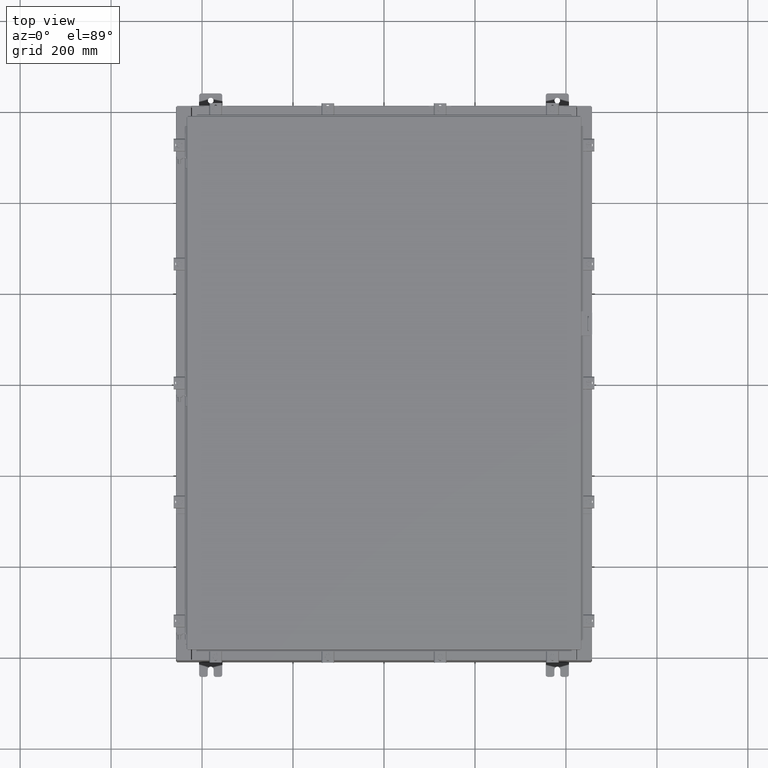
[diagram: clean part render]
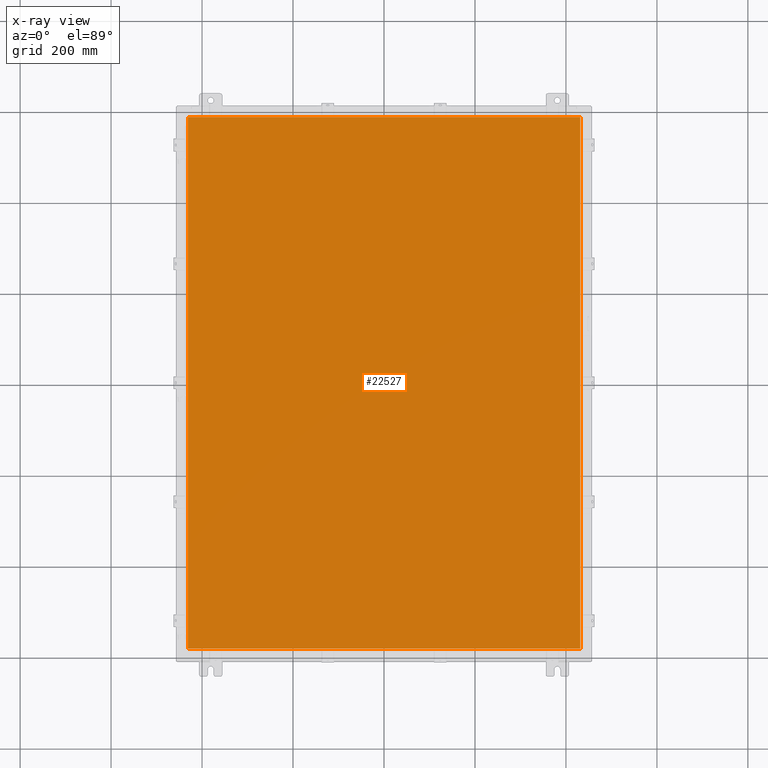
[diagram: x-ray — body ghosted, one internal face saturated and labeled with its STEP entity id]
A machine part, top view, then the same camera in x-ray: the body is ghosted and one INTERNAL B-rep face — a face not visible from any outside direction — is saturated and labeled: STEP entity #22527.
In plain terms, the highlighted planar face has unit normal (0, 0, -1).
Its self-contained STEP definition (entity closure, byte-faithful):
#345 = EDGE_CURVE ( 'NONE', #3444, #26256, #22061, .T. ) ;
#2572 = VECTOR ( 'NONE', #26600, 39.37007874015748100 ) ;
#3444 = VERTEX_POINT ( 'NONE', #26076 ) ;
#3899 = ORIENTED_EDGE ( 'NONE', *, *, #345, .F. ) ;
#4310 = VERTEX_POINT ( 'NONE', #20386 ) ;
#5598 = PLANE ( 'NONE',  #21323 ) ;
#5701 = ORIENTED_EDGE ( 'NONE', *, *, #10773, .F. ) ;
#5838 = EDGE_CURVE ( 'NONE', #10124, #3444, #8872, .T. ) ;
#7142 = EDGE_CURVE ( 'NONE', #26256, #4310, #12126, .T. ) ;
#8373 = ORIENTED_EDGE ( 'NONE', *, *, #7142, .F. ) ;
#8459 = EDGE_LOOP ( 'NONE', ( #3899, #8853, #5701, #8373 ) ) ;
#8853 = ORIENTED_EDGE ( 'NONE', *, *, #5838, .F. ) ;
#8872 = LINE ( 'NONE', #14610, #18157 ) ;
#9936 = DIRECTION ( 'NONE',  ( -1.000000000000000000, 0.0000000000000000000, -0.0000000000000000000 ) ) ;
#9995 = CARTESIAN_POINT ( 'NONE',  ( 16.99030000000000100, 23.00629999999999600, -0.07470000000000000300 ) ) ;
#10124 = VERTEX_POINT ( 'NONE', #16091 ) ;
#10773 = EDGE_CURVE ( 'NONE', #4310, #10124, #26621, .T. ) ;
#12092 = DIRECTION ( 'NONE',  ( 0.0000000000000000000, 1.000000000000000000, 0.0000000000000000000 ) ) ;
#12126 = LINE ( 'NONE', #14915, #22768 ) ;
#14488 = CARTESIAN_POINT ( 'NONE',  ( 16.99030000000000100, -23.00629999999999600, -0.07470000000000129300 ) ) ;
#14610 = CARTESIAN_POINT ( 'NONE',  ( -16.99029999999999800, -23.00630000000000000, -0.07469999999999797600 ) ) ;
#14896 = DIRECTION ( 'NONE',  ( 1.000000000000000000, -0.0000000000000000000, -0.0000000000000000000 ) ) ;
#14915 = CARTESIAN_POINT ( 'NONE',  ( 16.99029999999999800, 23.00630000000000000, -0.07469999999999804600 ) ) ;
#16091 = CARTESIAN_POINT ( 'NONE',  ( -16.99029999999999800, -23.00629999999999600, -0.07470000000000000300 ) ) ;
#18157 = VECTOR ( 'NONE', #14896, 39.37007874015748100 ) ;
#20386 = CARTESIAN_POINT ( 'NONE',  ( -16.99029999999999800, 23.00629999999999600, -0.07470000000000000300 ) ) ;
#20484 = CARTESIAN_POINT ( 'NONE',  ( 0.0000000000000000000, 0.0000000000000000000, -0.07470000000000000300 ) ) ;
#21323 = AXIS2_PLACEMENT_3D ( 'NONE', #20484, #22648, #9936 ) ;
#21806 = FACE_OUTER_BOUND ( 'NONE', #8459, .T. ) ;
#22061 = LINE ( 'NONE', #14488, #26417 ) ;
#22527 = ADVANCED_FACE ( 'NONE', ( #21806 ), #5598, .T. ) ;
#22648 = DIRECTION ( 'NONE',  ( 0.0000000000000000000, 0.0000000000000000000, -1.000000000000000000 ) ) ;
#22768 = VECTOR ( 'NONE', #25916, 39.37007874015748100 ) ;
#24447 = CARTESIAN_POINT ( 'NONE',  ( -16.99029999999999800, 23.00629999999999600, -0.07470000000000019700 ) ) ;
#25916 = DIRECTION ( 'NONE',  ( -1.000000000000000000, -0.0000000000000000000, -0.0000000000000000000 ) ) ;
#26076 = CARTESIAN_POINT ( 'NONE',  ( 16.99030000000000100, -23.00630000000000000, -0.07470000000000000300 ) ) ;
#26256 = VERTEX_POINT ( 'NONE', #9995 ) ;
#26417 = VECTOR ( 'NONE', #12092, 39.37007874015748100 ) ;
#26600 = DIRECTION ( 'NONE',  ( 0.0000000000000000000, -1.000000000000000000, 0.0000000000000000000 ) ) ;
#26621 = LINE ( 'NONE', #24447, #2572 ) ;